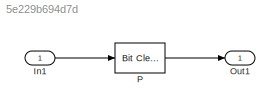
MODEL slx_5e229b694d7d
KIND model
CONFIG AbsTol = auto
CONFIG EnableMultiTasking = off
CONFIG FixedStep = auto
CONFIG MaxStep = auto
CONFIG MinStep = auto
CONFIG RelTol = 1e-3
CONFIG SampleTimeConstraint = Unconstrained
CONFIG Solver = FixedStepDiscrete
CONFIG SolverName = FixedStepDiscrete
CONFIG StartTime = 0.0
CONFIG StopTime = 10.0
BLOCK [Inport] In1
  IconDisplay = Port number
  OutDataTypeStr = uint8
  PortDimensions = [2 2]
BLOCK [Outport] Out1
  IconDisplay = Port number
BLOCK [Reference] P  REF=simulink/Logic and Bit
Operations/Bit Clear
  Ports = [1, 1]
  SourceBlock = simulink/Logic and Bit\nOperations/Bit Clear
  SourceProductBaseCode = SL
  SourceProductName = Simulink
  SourceType = Bit Clear
LINE In1:1 -> P:1
LINE P:1 -> Out1:1
